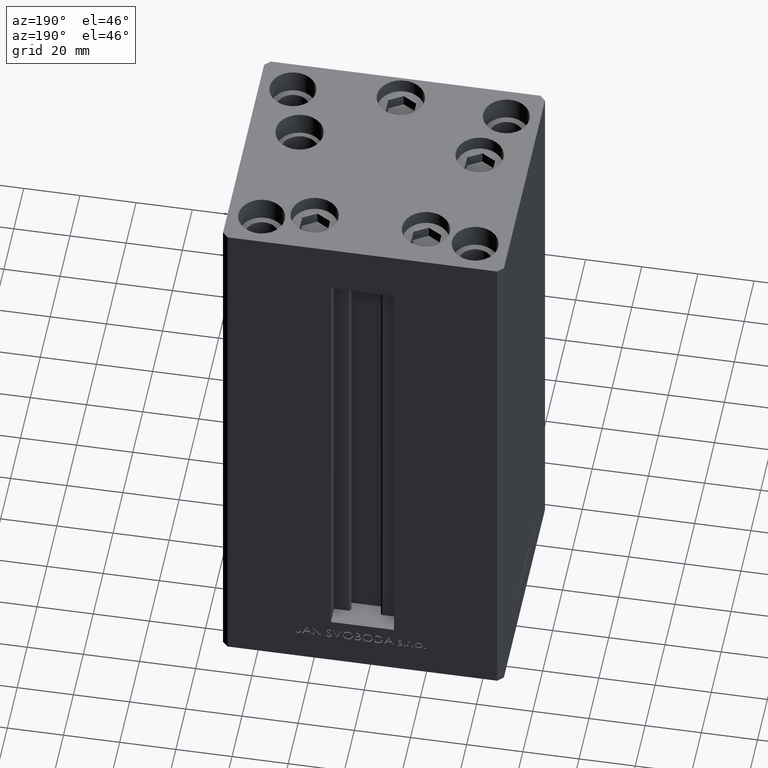
[diagram: clean part render]
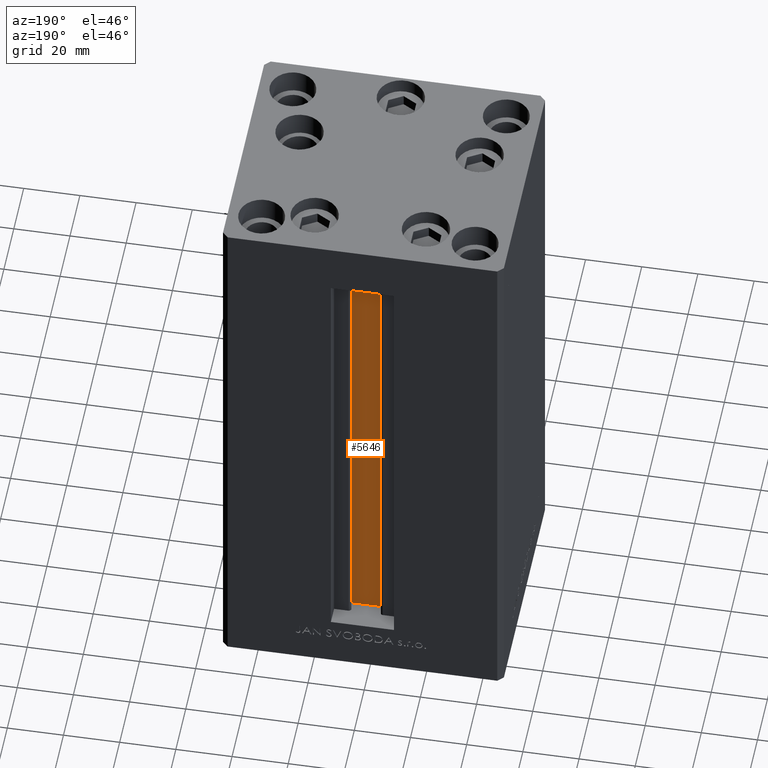
[diagram: same view with one face highlighted and labeled with its STEP entity id]
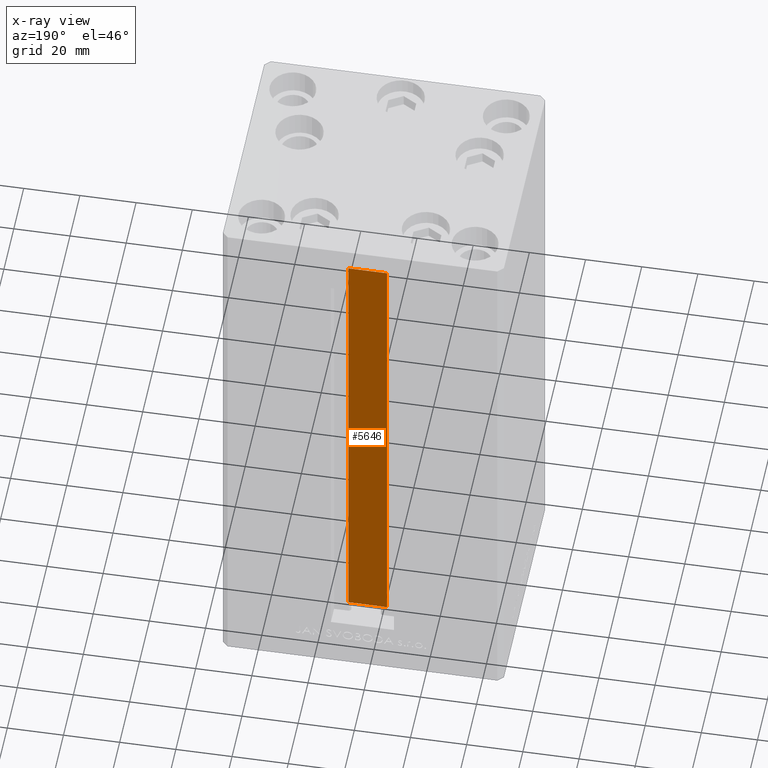
[diagram: x-ray of the same camera — body ghosted, the highlighted face saturated]
A machine part, auxiliary view. The second image highlights one B-rep face of the part: STEP entity #5646.
The next image is the same camera in x-ray: the body ghosted, the highlighted face saturated — about 0% of this face is hidden behind the body in this view.
In plain terms, the highlighted planar face has unit normal (0, -1, 0).
Its self-contained STEP definition (entity closure, byte-faithful):
#3590 = EDGE_CURVE ( 'NONE', #41925, #21207, #39373, .T. ) ;
#4562 = CARTESIAN_POINT ( 'NONE',  ( 6.876153656360465050, 32.99999999999986500, 0.000000000000000000 ) ) ;
#5538 = EDGE_CURVE ( 'NONE', #24092, #20215, #25899, .T. ) ;
#5646 = ADVANCED_FACE ( 'NONE', ( #42028 ), #12158, .F. ) ;
#8099 = DIRECTION ( 'NONE',  ( -1.000000000000000000, 0.000000000000000000, 0.000000000000000000 ) ) ;
#8230 = CARTESIAN_POINT ( 'NONE',  ( -6.876153656360465050, 32.99999999999986500, 168.5000000000000000 ) ) ;
#8282 = LINE ( 'NONE', #4562, #46390 ) ;
#9334 = CARTESIAN_POINT ( 'NONE',  ( -6.876153656360465050, 32.99999999999986500, 0.000000000000000000 ) ) ;
#11185 = DIRECTION ( 'NONE',  ( -0.000000000000000000, -0.000000000000000000, 1.000000000000000000 ) ) ;
#12158 = PLANE ( 'NONE',  #28864 ) ;
#15665 = DIRECTION ( 'NONE',  ( 0.000000000000000000, -1.000000000000000000, -0.000000000000000000 ) ) ;
#16144 = CARTESIAN_POINT ( 'NONE',  ( 6.876153656360465050, 32.99999999999986500, 0.000000000000000000 ) ) ;
#17190 = CARTESIAN_POINT ( 'NONE',  ( 6.876153656360465050, 32.99999999999986500, 168.5000000000000000 ) ) ;
#17900 = VECTOR ( 'NONE', #8099, 1000.000000000000000 ) ;
#18925 = EDGE_CURVE ( 'NONE', #24092, #41925, #8282, .T. ) ;
#20215 = VERTEX_POINT ( 'NONE', #8230 ) ;
#21207 = VERTEX_POINT ( 'NONE', #17190 ) ;
#23057 = CARTESIAN_POINT ( 'NONE',  ( 0.000000000000000000, 32.99999999999986500, 168.5000000000000000 ) ) ;
#23965 = DIRECTION ( 'NONE',  ( 1.000000000000000000, -0.000000000000000000, -0.000000000000000000 ) ) ;
#24026 = LINE ( 'NONE', #23057, #17900 ) ;
#24092 = VERTEX_POINT ( 'NONE', #9334 ) ;
#25899 = LINE ( 'NONE', #37084, #31228 ) ;
#26637 = DIRECTION ( 'NONE',  ( 0.000000000000000000, 0.000000000000000000, -1.000000000000000000 ) ) ;
#28864 = AXIS2_PLACEMENT_3D ( 'NONE', #16144, #15665, #26637 ) ;
#31228 = VECTOR ( 'NONE', #11185, 1000.000000000000000 ) ;
#36395 = CARTESIAN_POINT ( 'NONE',  ( 6.876153656360465050, 32.99999999999986500, 0.000000000000000000 ) ) ;
#37084 = CARTESIAN_POINT ( 'NONE',  ( -6.876153656360465050, 32.99999999999986500, 0.000000000000000000 ) ) ;
#37631 = ORIENTED_EDGE ( 'NONE', *, *, #3590, .F. ) ;
#37703 = ORIENTED_EDGE ( 'NONE', *, *, #45132, .F. ) ;
#39244 = EDGE_LOOP ( 'NONE', ( #37631, #43006, #43521, #37703 ) ) ;
#39373 = LINE ( 'NONE', #36395, #46378 ) ;
#40110 = DIRECTION ( 'NONE',  ( -0.000000000000000000, -0.000000000000000000, 1.000000000000000000 ) ) ;
#41925 = VERTEX_POINT ( 'NONE', #48139 ) ;
#42028 = FACE_OUTER_BOUND ( 'NONE', #39244, .T. ) ;
#43006 = ORIENTED_EDGE ( 'NONE', *, *, #18925, .F. ) ;
#43521 = ORIENTED_EDGE ( 'NONE', *, *, #5538, .T. ) ;
#45132 = EDGE_CURVE ( 'NONE', #21207, #20215, #24026, .T. ) ;
#46378 = VECTOR ( 'NONE', #40110, 1000.000000000000000 ) ;
#46390 = VECTOR ( 'NONE', #23965, 1000.000000000000000 ) ;
#48139 = CARTESIAN_POINT ( 'NONE',  ( 6.876153656360465050, 32.99999999999986500, 0.000000000000000000 ) ) ;